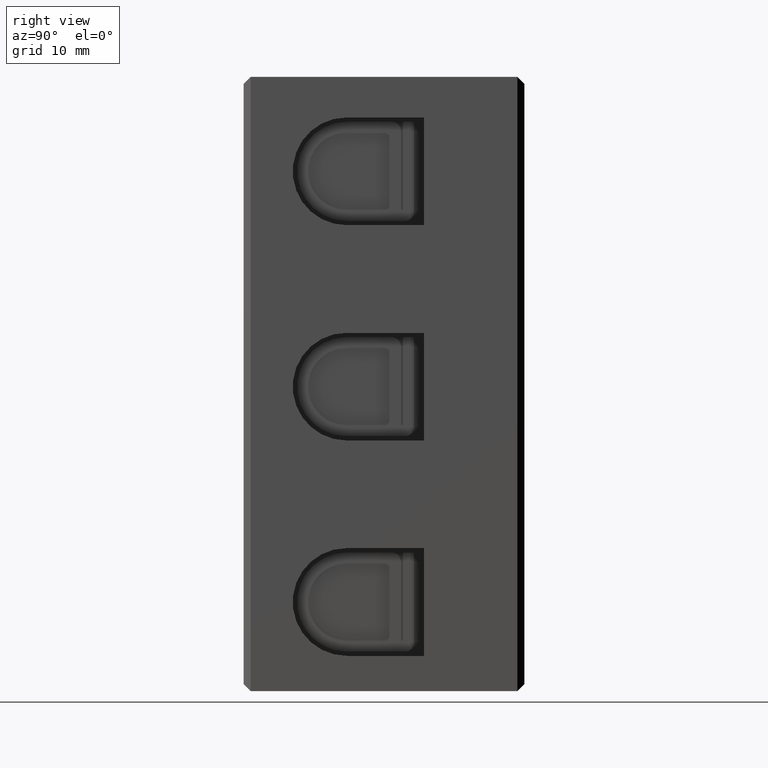
[diagram: clean part render]
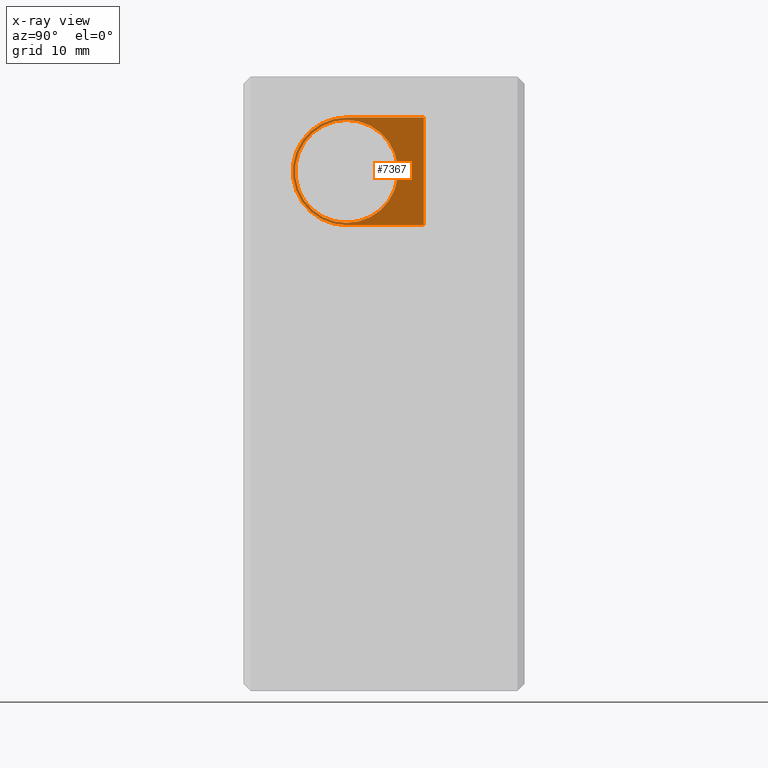
[diagram: x-ray — body ghosted, one internal face saturated and labeled with its STEP entity id]
A machine part, right view, then the same camera in x-ray: the body is ghosted and one INTERNAL B-rep face — a face not visible from any outside direction — is saturated and labeled: STEP entity #7367.
In plain terms, the highlighted planar face has unit normal (-1, 0, 0).
Its self-contained STEP definition (entity closure, byte-faithful):
#64 = EDGE_CURVE ( 'NONE', #9404, #9385, #6511, .T. ) ;
#1040 = CARTESIAN_POINT ( 'NONE',  ( 3.000000000000006200, 19.24999999999999600, 61.25000000000000000 ) ) ;
#1081 = CARTESIAN_POINT ( 'NONE',  ( 3.000000000000004000, 11.00000000000000000, 61.25000000000000000 ) ) ;
#1121 = CARTESIAN_POINT ( 'NONE',  ( 3.000000000000003600, 11.00000000000000000, 49.75000000000000000 ) ) ;
#1141 = CARTESIAN_POINT ( 'NONE',  ( 3.000000000000004900, 19.24999999999999600, 49.74999999999999300 ) ) ;
#1285 = CARTESIAN_POINT ( 'NONE',  ( 3.000000000000008000, 11.00000000000000000, 61.00000000000000000 ) ) ;
#1361 = CARTESIAN_POINT ( 'NONE',  ( 3.000000000000006200, 11.00000000000000000, 50.00000000000000000 ) ) ;
#1635 = EDGE_CURVE ( 'NONE', #9159, #9129, #3626, .T. ) ;
#1648 = EDGE_CURVE ( 'NONE', #9129, #9197, #3676, .T. ) ;
#1660 = EDGE_CURVE ( 'NONE', #9183, #9159, #8607, .T. ) ;
#1681 = EDGE_CURVE ( 'NONE', #9197, #9183, #1938, .T. ) ;
#1698 = EDGE_CURVE ( 'NONE', #9385, #9404, #8672, .T. ) ;
#1910 = CARTESIAN_POINT ( 'NONE',  ( 3.000000000000006200, 11.00000000000000000, 49.75000000000000000 ) ) ;
#1923 = DIRECTION ( 'NONE',  ( -0.0000000000000000000, -1.000000000000000000, 0.0000000000000000000 ) ) ;
#1938 = LINE ( 'NONE', #1910, #8666 ) ;
#1984 = CARTESIAN_POINT ( 'NONE',  ( 3.000000000000007100, 11.00000000000000000, 55.50000000000000000 ) ) ;
#1985 = DIRECTION ( 'NONE',  ( -1.000000000000000000, 0.0000000000000000000, 1.224646799147353200E-016 ) ) ;
#1986 = DIRECTION ( 'NONE',  ( 1.577021341797097800E-016, 0.0000000000000000000, 1.000000000000000000 ) ) ;
#2789 = CARTESIAN_POINT ( 'NONE',  ( 3.000000000000002700, 11.00000000000000000, 55.50000000000000000 ) ) ;
#2811 = DIRECTION ( 'NONE',  ( -1.000000000000000000, 0.0000000000000000000, 1.224646799147353200E-016 ) ) ;
#2825 = DIRECTION ( 'NONE',  ( 1.508455196501570000E-016, 0.0000000000000000000, 1.000000000000000000 ) ) ;
#3626 = LINE ( 'NONE', #3628, #8597 ) ;
#3628 = CARTESIAN_POINT ( 'NONE',  ( 3.000000000000008000, 11.00000000000000000, 61.25000000000000000 ) ) ;
#3647 = DIRECTION ( 'NONE',  ( 0.0000000000000000000, 1.000000000000000000, -0.0000000000000000000 ) ) ;
#3673 = DIRECTION ( 'NONE',  ( -1.224646799147353200E-016, -0.0000000000000000000, -1.000000000000000000 ) ) ;
#3676 = LINE ( 'NONE', #3691, #8599 ) ;
#3691 = CARTESIAN_POINT ( 'NONE',  ( 3.000000000000007100, 19.24999999999999600, 55.50000000000000000 ) ) ;
#4232 = EDGE_LOOP ( 'NONE', ( #6113, #6058, #8771, #8741 ) ) ;
#4270 = EDGE_LOOP ( 'NONE', ( #9559, #6090 ) ) ;
#4605 = CARTESIAN_POINT ( 'NONE',  ( 3.000000000000007100, 11.00000000000000000, 55.50000000000000000 ) ) ;
#4631 = DIRECTION ( 'NONE',  ( 1.577021341797097800E-016, 0.0000000000000000000, 1.000000000000000000 ) ) ;
#4633 = DIRECTION ( 'NONE',  ( -1.000000000000000000, 0.0000000000000000000, 1.224646799147353200E-016 ) ) ;
#6058 = ORIENTED_EDGE ( 'NONE', *, *, #1648, .F. ) ;
#6090 = ORIENTED_EDGE ( 'NONE', *, *, #64, .T. ) ;
#6113 = ORIENTED_EDGE ( 'NONE', *, *, #1681, .F. ) ;
#6511 = CIRCLE ( 'NONE', #6522, 5.499999999999998200 ) ;
#6522 = AXIS2_PLACEMENT_3D ( 'NONE', #4605, #4633, #4631 ) ;
#7367 = ADVANCED_FACE ( 'NONE', ( #9845, #9878 ), #9836, .F. ) ;
#8231 = AXIS2_PLACEMENT_3D ( 'NONE', #9879, #9852, #9849 ) ;
#8597 = VECTOR ( 'NONE', #3647, 1000.000000000000000 ) ;
#8599 = VECTOR ( 'NONE', #3673, 1000.000000000000000 ) ;
#8607 = CIRCLE ( 'NONE', #8615, 5.750000000000005300 ) ;
#8615 = AXIS2_PLACEMENT_3D ( 'NONE', #2789, #2811, #2825 ) ;
#8666 = VECTOR ( 'NONE', #1923, 1000.000000000000000 ) ;
#8672 = CIRCLE ( 'NONE', #8692, 5.499999999999998200 ) ;
#8692 = AXIS2_PLACEMENT_3D ( 'NONE', #1984, #1985, #1986 ) ;
#8741 = ORIENTED_EDGE ( 'NONE', *, *, #1660, .F. ) ;
#8771 = ORIENTED_EDGE ( 'NONE', *, *, #1635, .F. ) ;
#9129 = VERTEX_POINT ( 'NONE', #1040 ) ;
#9159 = VERTEX_POINT ( 'NONE', #1081 ) ;
#9183 = VERTEX_POINT ( 'NONE', #1121 ) ;
#9197 = VERTEX_POINT ( 'NONE', #1141 ) ;
#9385 = VERTEX_POINT ( 'NONE', #1285 ) ;
#9404 = VERTEX_POINT ( 'NONE', #1361 ) ;
#9559 = ORIENTED_EDGE ( 'NONE', *, *, #1698, .T. ) ;
#9836 = PLANE ( 'NONE',  #8231 ) ;
#9845 = FACE_BOUND ( 'NONE', #4270, .T. ) ;
#9849 = DIRECTION ( 'NONE',  ( 1.224646799147353200E-016, 0.0000000000000000000, 1.000000000000000000 ) ) ;
#9852 = DIRECTION ( 'NONE',  ( -1.000000000000000000, 0.0000000000000000000, 1.224646799147353200E-016 ) ) ;
#9878 = FACE_OUTER_BOUND ( 'NONE', #4232, .T. ) ;
#9879 = CARTESIAN_POINT ( 'NONE',  ( 3.000000000000007100, 11.00000000000000000, 55.50000000000000000 ) ) ;